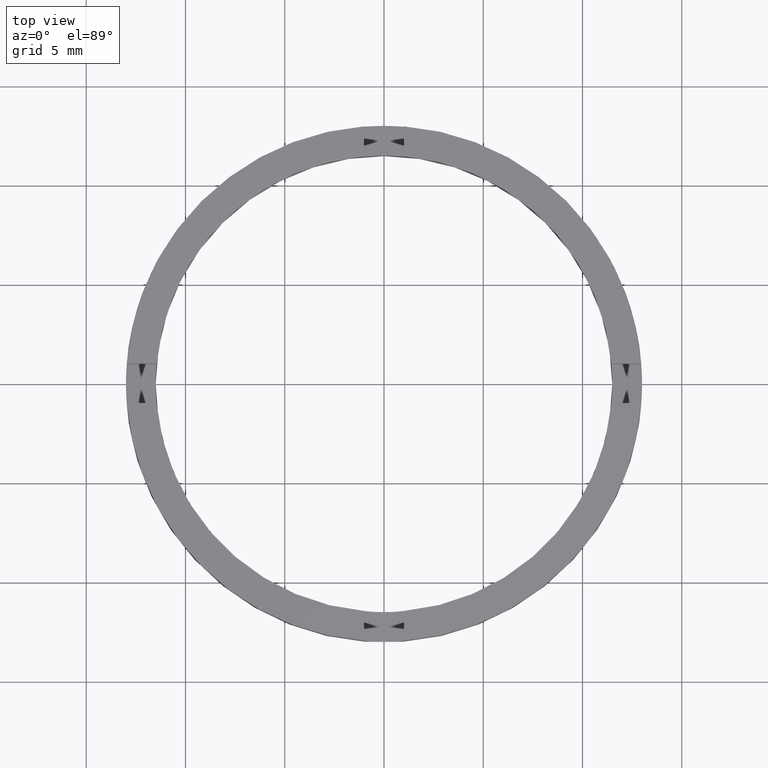
[diagram: clean part render]
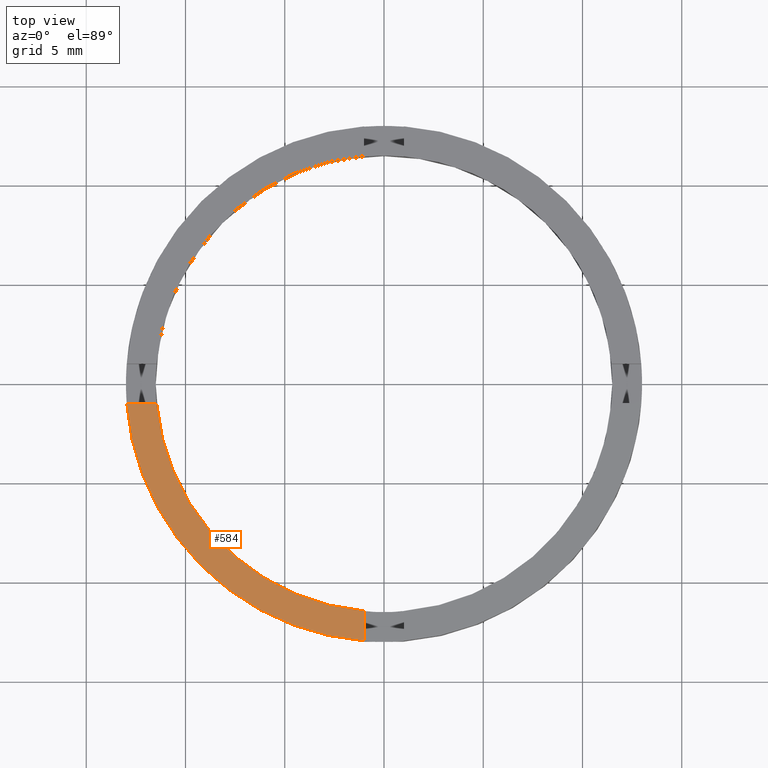
[diagram: same view with one face highlighted and labeled with its STEP entity id]
A machine part, top view. The second image highlights one B-rep face of the part: STEP entity #584.
In plain terms, the highlighted planar face has unit normal (0, 0, 1).
Its self-contained STEP definition (entity closure, byte-faithful):
#1 = CARTESIAN_POINT ( 'NONE',  ( 0.000000000000000000, 0.000000000000000000, 2.500000000000000000 ) ) ;
#27 = DIRECTION ( 'NONE',  ( 1.000000000000000000, 1.734723475976806848E-16, -0.000000000000000000 ) ) ;
#42 = PLANE ( 'NONE',  #567 ) ;
#62 = EDGE_CURVE ( 'NONE', #705, #684, #216, .T. ) ;
#85 = DIRECTION ( 'NONE',  ( 0.000000000000000000, 0.000000000000000000, 1.000000000000000000 ) ) ;
#91 = CARTESIAN_POINT ( 'NONE',  ( -1.000000000000163425, -12.96148139681570655, 2.500000000000000000 ) ) ;
#126 = DIRECTION ( 'NONE',  ( 1.301042606982605074E-16, -1.000000000000000000, 0.000000000000000000 ) ) ;
#136 = EDGE_CURVE ( 'NONE', #392, #684, #763, .T. ) ;
#185 = DIRECTION ( 'NONE',  ( 1.000000000000000000, 0.000000000000000000, -0.000000000000000000 ) ) ;
#191 = EDGE_CURVE ( 'NONE', #628, #392, #494, .T. ) ;
#199 = ORIENTED_EDGE ( 'NONE', *, *, #191, .F. ) ;
#215 = EDGE_CURVE ( 'NONE', #705, #628, #239, .T. ) ;
#216 = CIRCLE ( 'NONE', #461, 12.99999999999999822 ) ;
#239 = LINE ( 'NONE', #765, #764 ) ;
#248 = VECTOR ( 'NONE', #126, 1000.000000000000000 ) ;
#261 = CARTESIAN_POINT ( 'NONE',  ( -11.45643923738959735, -1.000000000000022204, 2.500000000000000000 ) ) ;
#309 = CARTESIAN_POINT ( 'NONE',  ( 0.000000000000000000, 0.000000000000000000, 2.500000000000000000 ) ) ;
#319 = CARTESIAN_POINT ( 'NONE',  ( -12.96148139681571543, -1.000000000000022427, 2.500000000000000000 ) ) ;
#321 = CARTESIAN_POINT ( 'NONE',  ( -1.000000000000163647, -11.45643923738958669, 2.500000000000000000 ) ) ;
#365 = ORIENTED_EDGE ( 'NONE', *, *, #215, .F. ) ;
#367 = DIRECTION ( 'NONE',  ( 0.000000000000000000, 0.000000000000000000, 1.000000000000000000 ) ) ;
#368 = AXIS2_PLACEMENT_3D ( 'NONE', #309, #367, #562 ) ;
#392 = VERTEX_POINT ( 'NONE', #321 ) ;
#412 = EDGE_LOOP ( 'NONE', ( #607, #199, #365, #447 ) ) ;
#447 = ORIENTED_EDGE ( 'NONE', *, *, #62, .T. ) ;
#461 = AXIS2_PLACEMENT_3D ( 'NONE', #570, #775, #631 ) ;
#494 = CIRCLE ( 'NONE', #368, 11.50000000000000000 ) ;
#507 = CARTESIAN_POINT ( 'NONE',  ( -1.000000000000164757, -3.000000000000176303, 2.500000000000000000 ) ) ;
#520 = FACE_OUTER_BOUND ( 'NONE', #412, .T. ) ;
#562 = DIRECTION ( 'NONE',  ( 1.000000000000000000, 0.000000000000000000, 0.000000000000000000 ) ) ;
#567 = AXIS2_PLACEMENT_3D ( 'NONE', #1, #85, #185 ) ;
#570 = CARTESIAN_POINT ( 'NONE',  ( 0.000000000000000000, 0.000000000000000000, 2.500000000000000000 ) ) ;
#584 = ADVANCED_FACE ( 'NONE', ( #520 ), #42, .T. ) ;
#607 = ORIENTED_EDGE ( 'NONE', *, *, #136, .F. ) ;
#628 = VERTEX_POINT ( 'NONE', #261 ) ;
#631 = DIRECTION ( 'NONE',  ( 1.000000000000000000, 0.000000000000000000, 0.000000000000000000 ) ) ;
#684 = VERTEX_POINT ( 'NONE', #91 ) ;
#705 = VERTEX_POINT ( 'NONE', #319 ) ;
#763 = LINE ( 'NONE', #507, #248 ) ;
#764 = VECTOR ( 'NONE', #27, 1000.000000000000000 ) ;
#765 = CARTESIAN_POINT ( 'NONE',  ( -3.000000000000179412, -1.000000000000020650, 2.500000000000000000 ) ) ;
#775 = DIRECTION ( 'NONE',  ( 0.000000000000000000, 0.000000000000000000, 1.000000000000000000 ) ) ;